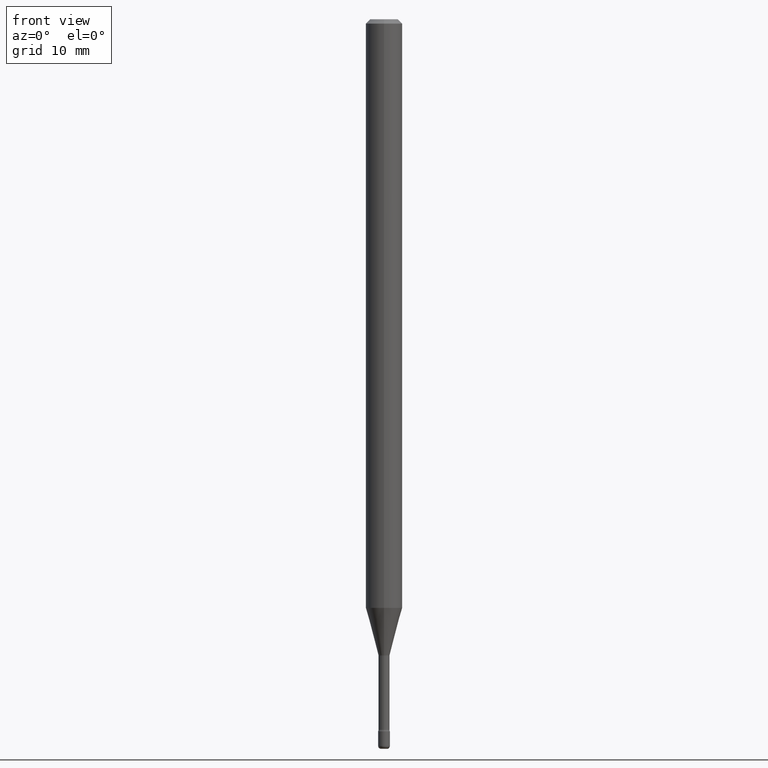
[diagram: clean part render]
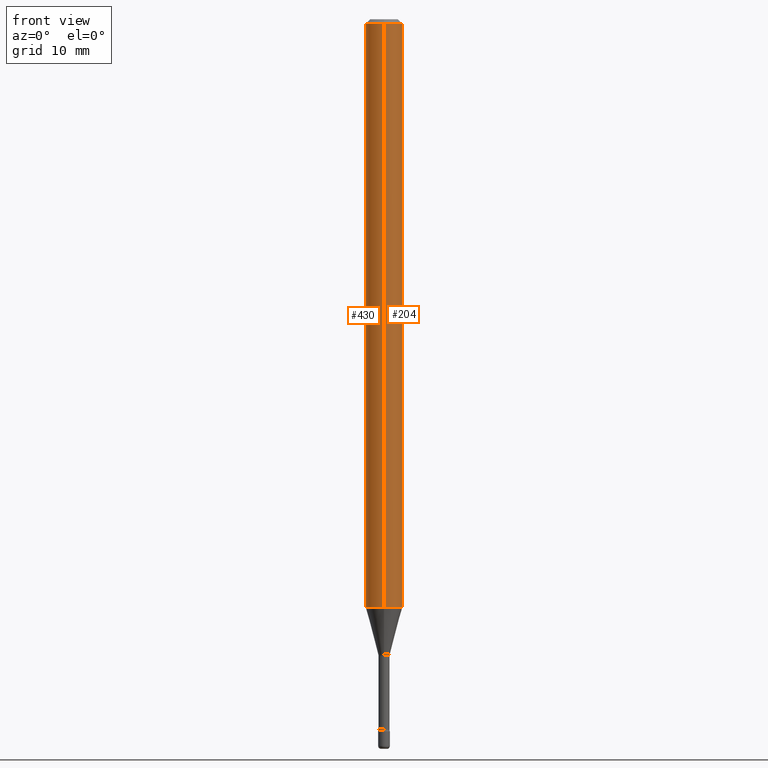
[diagram: same view with one multi-face feature highlighted, each face labeled with its STEP entity id]
A machine part, front view. The highlighted faces form ONE feature: a constant-radius fillet chain: 2 tangent blend faces with common blend radius 1.5875 mm. The faces share edges in the B-rep.
Their STEP definitions:
[1] entity #204 (Cylinder):
#11 = CARTESIAN_POINT ( 'NONE',  ( 4.440892098501122158E-16, 0.06249999999999995143, -0.01500000000000024578 ) ) ;
#31 = EDGE_CURVE ( 'NONE', #170, #147, #444, .T. ) ;
#40 = EDGE_CURVE ( 'NONE', #72, #170, #163, .T. ) ;
#72 = VERTEX_POINT ( 'NONE', #199 ) ;
#90 = CARTESIAN_POINT ( 'NONE',  ( 4.932161618326981026E-29, -7.042183840505880403E-15, -2.016909379709240557 ) ) ;
#110 = AXIS2_PLACEMENT_3D ( 'NONE', #203, #148, #424 ) ;
#126 = ORIENTED_EDGE ( 'NONE', *, *, #526, .F. ) ;
#147 = VERTEX_POINT ( 'NONE', #11 ) ;
#148 = DIRECTION ( 'NONE',  ( -2.445405662716490355E-29, 3.491571763884150069E-15, 1.000000000000000000 ) ) ;
#163 = CIRCLE ( 'NONE', #489, 0.06250000000000000000 ) ;
#170 = VERTEX_POINT ( 'NONE', #358 ) ;
#176 = ORIENTED_EDGE ( 'NONE', *, *, #40, .T. ) ;
#199 = CARTESIAN_POINT ( 'NONE',  ( -4.364351673553424149E-16, -0.06250000000000706379, -2.016909379709240113 ) ) ;
#203 = CARTESIAN_POINT ( 'NONE',  ( 3.668108494074741645E-31, -5.237357645826235236E-17, -0.01500000000000002720 ) ) ;
#204 = ADVANCED_FACE ( 'NONE', ( #315 ), #354, .T. ) ;
#224 = LINE ( 'NONE', #271, #465 ) ;
#229 = AXIS2_PLACEMENT_3D ( 'NONE', #273, #395, #270 ) ;
#253 = ORIENTED_EDGE ( 'NONE', *, *, #31, .T. ) ;
#259 = ORIENTED_EDGE ( 'NONE', *, *, #329, .F. ) ;
#264 = DIRECTION ( 'NONE',  ( -2.445405662716490355E-29, 3.491571763884150069E-15, 1.000000000000000000 ) ) ;
#270 = DIRECTION ( 'NONE',  ( -6.982962677686265922E-15, -1.000000000000000000, 3.491571763884149675E-15 ) ) ;
#271 = CARTESIAN_POINT ( 'NONE',  ( -4.364351673553916201E-16, -0.06250000000000000000, 6.962966341340053686E-16 ) ) ;
#273 = CARTESIAN_POINT ( 'NONE',  ( -1.169113584055446105E-44, 1.669184350826100908E-30, 4.780733988912460139E-16 ) ) ;
#315 = FACE_OUTER_BOUND ( 'NONE', #569, .T. ) ;
#329 = EDGE_CURVE ( 'NONE', #72, #332, #224, .T. ) ;
#332 = VERTEX_POINT ( 'NONE', #439 ) ;
#352 = DIRECTION ( 'NONE',  ( -2.445405662716490635E-29, 3.491571763884150069E-15, 1.000000000000000000 ) ) ;
#354 = CYLINDRICAL_SURFACE ( 'NONE', #229, 0.06250000000000000000 ) ;
#358 = CARTESIAN_POINT ( 'NONE',  ( 4.440892098501117228E-16, 0.06249999999999293621, -2.016909379709241001 ) ) ;
#389 = DIRECTION ( 'NONE',  ( -2.445405662716490635E-29, 3.491571763884150069E-15, 1.000000000000000000 ) ) ;
#395 = DIRECTION ( 'NONE',  ( -2.445405662716490355E-29, 3.491571763884150069E-15, 1.000000000000000000 ) ) ;
#412 = VECTOR ( 'NONE', #389, 39.37007874015748143 ) ;
#424 = DIRECTION ( 'NONE',  ( -6.982962677686265922E-15, -1.000000000000000000, 3.483106191921935554E-15 ) ) ;
#439 = CARTESIAN_POINT ( 'NONE',  ( -4.364351673553912750E-16, -0.06250000000000005551, -0.01499999999999981036 ) ) ;
#441 = DIRECTION ( 'NONE',  ( -6.982962677686265922E-15, -1.000000000000000000, 4.370956789862821150E-15 ) ) ;
#444 = LINE ( 'NONE', #487, #412 ) ;
#445 = CIRCLE ( 'NONE', #110, 0.06250000000000000000 ) ;
#465 = VECTOR ( 'NONE', #352, 39.37007874015748143 ) ;
#487 = CARTESIAN_POINT ( 'NONE',  ( 4.440892098500625669E-16, 0.06250000000000000000, 2.598501636484867085E-16 ) ) ;
#489 = AXIS2_PLACEMENT_3D ( 'NONE', #90, #264, #441 ) ;
#526 = EDGE_CURVE ( 'NONE', #332, #147, #445, .T. ) ;
#569 = EDGE_LOOP ( 'NONE', ( #176, #253, #126, #259 ) ) ;
[2] entity #430 (Cylinder):
#6 = DIRECTION ( 'NONE',  ( -6.982962677686265922E-15, -1.000000000000000000, 3.483106191921935554E-15 ) ) ;
#11 = CARTESIAN_POINT ( 'NONE',  ( 4.440892098501122158E-16, 0.06249999999999995143, -0.01500000000000024578 ) ) ;
#19 = ORIENTED_EDGE ( 'NONE', *, *, #46, .F. ) ;
#31 = EDGE_CURVE ( 'NONE', #170, #147, #444, .T. ) ;
#33 = CYLINDRICAL_SURFACE ( 'NONE', #105, 0.06250000000000000000 ) ;
#35 = DIRECTION ( 'NONE',  ( -2.445405662716490355E-29, 3.491571763884150069E-15, 1.000000000000000000 ) ) ;
#46 = EDGE_CURVE ( 'NONE', #147, #332, #182, .T. ) ;
#47 = CARTESIAN_POINT ( 'NONE',  ( 3.668108494074741645E-31, -5.237357645826235236E-17, -0.01500000000000002720 ) ) ;
#63 = EDGE_CURVE ( 'NONE', #170, #72, #524, .T. ) ;
#72 = VERTEX_POINT ( 'NONE', #199 ) ;
#105 = AXIS2_PLACEMENT_3D ( 'NONE', #108, #35, #117 ) ;
#108 = CARTESIAN_POINT ( 'NONE',  ( -1.169113584055446105E-44, 1.669184350826100908E-30, 4.780733988912460139E-16 ) ) ;
#109 = DIRECTION ( 'NONE',  ( -6.982962677686265922E-15, -1.000000000000000000, 4.370956789862821150E-15 ) ) ;
#114 = DIRECTION ( 'NONE',  ( -2.445405662716490355E-29, 3.491571763884150069E-15, 1.000000000000000000 ) ) ;
#117 = DIRECTION ( 'NONE',  ( -6.982962677686265922E-15, -1.000000000000000000, 3.491571763884149675E-15 ) ) ;
#147 = VERTEX_POINT ( 'NONE', #11 ) ;
#154 = ORIENTED_EDGE ( 'NONE', *, *, #63, .T. ) ;
#156 = AXIS2_PLACEMENT_3D ( 'NONE', #47, #226, #6 ) ;
#167 = FACE_OUTER_BOUND ( 'NONE', #368, .T. ) ;
#170 = VERTEX_POINT ( 'NONE', #358 ) ;
#182 = CIRCLE ( 'NONE', #156, 0.06250000000000000000 ) ;
#199 = CARTESIAN_POINT ( 'NONE',  ( -4.364351673553424149E-16, -0.06250000000000706379, -2.016909379709240113 ) ) ;
#213 = ORIENTED_EDGE ( 'NONE', *, *, #329, .T. ) ;
#224 = LINE ( 'NONE', #271, #465 ) ;
#226 = DIRECTION ( 'NONE',  ( -2.445405662716490355E-29, 3.491571763884150069E-15, 1.000000000000000000 ) ) ;
#271 = CARTESIAN_POINT ( 'NONE',  ( -4.364351673553916201E-16, -0.06250000000000000000, 6.962966341340053686E-16 ) ) ;
#329 = EDGE_CURVE ( 'NONE', #72, #332, #224, .T. ) ;
#332 = VERTEX_POINT ( 'NONE', #439 ) ;
#352 = DIRECTION ( 'NONE',  ( -2.445405662716490635E-29, 3.491571763884150069E-15, 1.000000000000000000 ) ) ;
#358 = CARTESIAN_POINT ( 'NONE',  ( 4.440892098501117228E-16, 0.06249999999999293621, -2.016909379709241001 ) ) ;
#368 = EDGE_LOOP ( 'NONE', ( #470, #154, #213, #19 ) ) ;
#389 = DIRECTION ( 'NONE',  ( -2.445405662716490635E-29, 3.491571763884150069E-15, 1.000000000000000000 ) ) ;
#412 = VECTOR ( 'NONE', #389, 39.37007874015748143 ) ;
#417 = AXIS2_PLACEMENT_3D ( 'NONE', #528, #114, #109 ) ;
#430 = ADVANCED_FACE ( 'NONE', ( #167 ), #33, .T. ) ;
#439 = CARTESIAN_POINT ( 'NONE',  ( -4.364351673553912750E-16, -0.06250000000000005551, -0.01499999999999981036 ) ) ;
#444 = LINE ( 'NONE', #487, #412 ) ;
#465 = VECTOR ( 'NONE', #352, 39.37007874015748143 ) ;
#470 = ORIENTED_EDGE ( 'NONE', *, *, #31, .F. ) ;
#487 = CARTESIAN_POINT ( 'NONE',  ( 4.440892098500625669E-16, 0.06250000000000000000, 2.598501636484867085E-16 ) ) ;
#524 = CIRCLE ( 'NONE', #417, 0.06250000000000000000 ) ;
#528 = CARTESIAN_POINT ( 'NONE',  ( 4.932161618326981026E-29, -7.042183840505880403E-15, -2.016909379709240557 ) ) ;